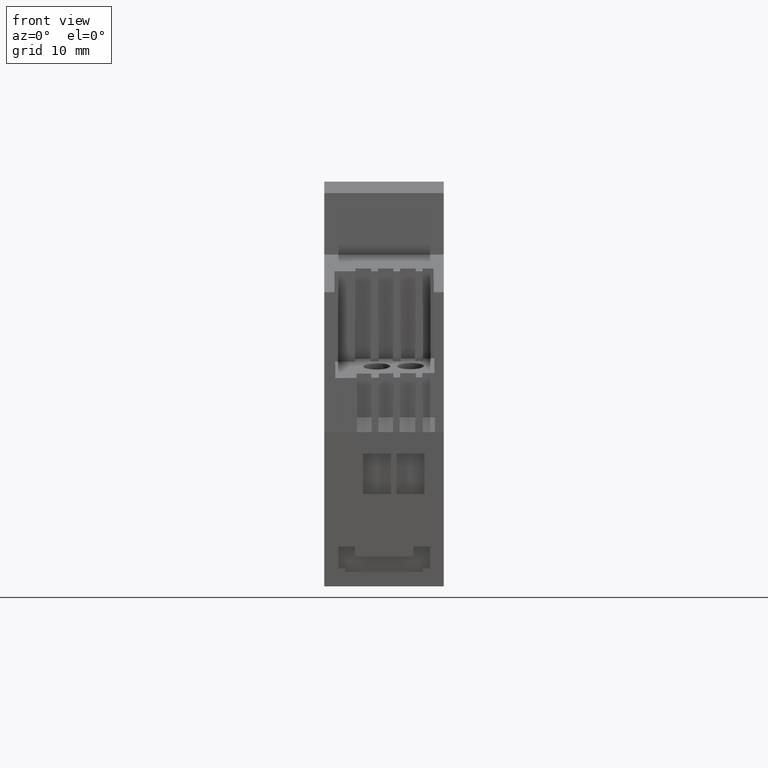
[diagram: clean part render]
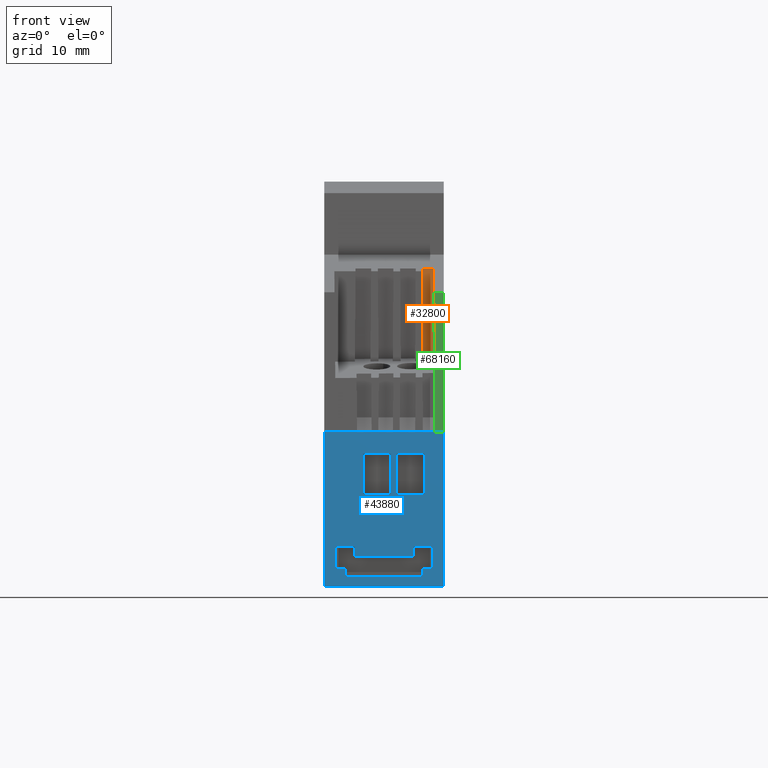
[diagram: same view with three faces highlighted in distinct colors, each labeled with its STEP entity id]
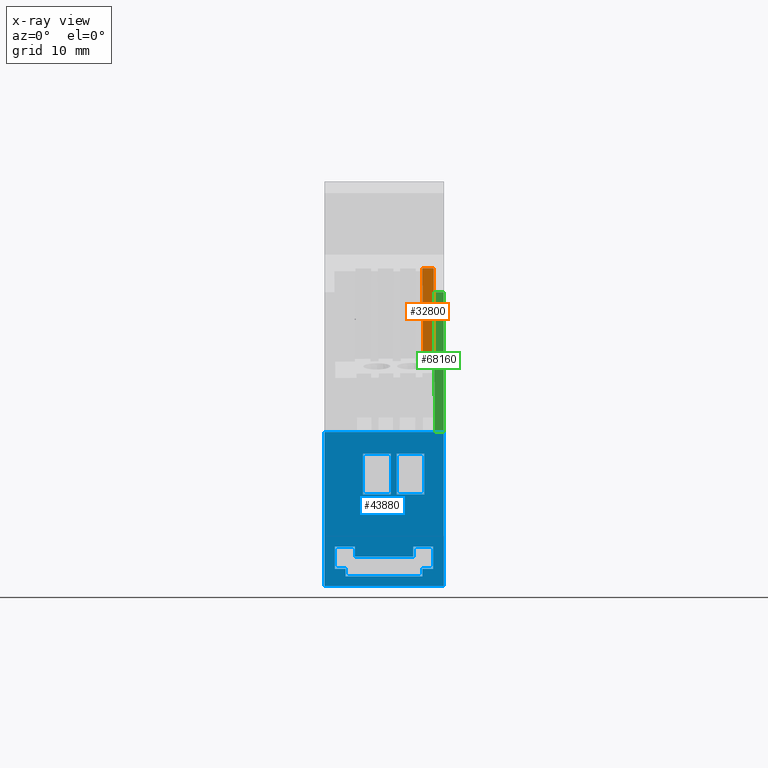
[diagram: x-ray of the same camera — body ghosted, the three highlighted faces saturated]
A machine part, front view with three faces highlighted in distinct colors.
The next image is the same camera in x-ray (body ghosted, the three faces saturated) — at least one of them is partly hidden behind the body in this view.
Their STEP definitions:

[orange] entity #32800 — the highlighted planar face has unit normal (0.0002, 0.9998, -0.0223).
#6060=CARTESIAN_POINT('',(11.1944867334395,-82.8205342161676,
6.34089229144267));
#6070=DIRECTION('',(-1.76127537504895E-14,0.00872653549841275,
-0.999961923064171));
#6080=DIRECTION('',(0.200308362867416,0.979695597030382,
0.00854967395050714));
#6090=AXIS2_PLACEMENT_3D('',#6060,#6070,#6080);
#6100=CYLINDRICAL_SURFACE('',#6090,118.996222798679);
#6380=CARTESIAN_POINT('',(0.0678739772899988,-78.049936182583,-9.));
#6390=DIRECTION('',(0.,0.,-1.));
#6400=DIRECTION('',(-0.173645167147608,0.984808283843246,0.));
#6410=AXIS2_PLACEMENT_3D('',#6380,#6390,#6400);
#6420=CYLINDRICAL_SURFACE('',#6410,129.9791574237);
#6480=CARTESIAN_POINT('',(32.153217548531,47.9068504249294,
-7.46883637802487));
#6490=VERTEX_POINT('',#6480);
#6540=CARTESIAN_POINT('',(32.2,45.7958963043397,-5.80730438806806));
#6550=DIRECTION('',(-0.999751787330191,-0.0222786790074192,
-0.000155537047573668));
#6560=DIRECTION('',(0.0222792219363421,-0.999727424084353,
-0.00697952746070477));
#6570=AXIS2_PLACEMENT_3D('',#6540,#6550,#6560);
#6580=PLANE('',#6570);
#6590=CARTESIAN_POINT('',(32.1532175485309,47.9068504249294,
-7.4688363779665));
#6600=CARTESIAN_POINT('',(32.1531956922292,47.9068559924496,
-7.32914721665293));
#6610=CARTESIAN_POINT('',(32.1531738359276,47.9068615599636,
-7.18945805534681));
#6620=CARTESIAN_POINT('',(32.1531519796262,47.9068671274716,
-7.04976889403632));
#6630=CARTESIAN_POINT('',(32.1531301233247,47.9068726949796,
-6.91007973272342));
#6640=CARTESIAN_POINT('',(32.1531082670234,47.9068782624815,
-6.77039057141621));
#6650=CARTESIAN_POINT('',(32.1530864107222,47.9068838299773,
-6.6307014101062));
#6660=CARTESIAN_POINT('',(32.153064554421,47.9068893974731,
-6.49101224879592));
#6670=CARTESIAN_POINT('',(32.1530426981199,47.9068949649628,
-6.35132308748927));
#6680=CARTESIAN_POINT('',(32.153020841819,47.9069005324465,
-6.21163392617596));
#6690=CARTESIAN_POINT('',(32.1529989855181,47.9069060999301,
-6.07194476486596));
#6700=CARTESIAN_POINT('',(32.1529771292173,47.9069116674076,
-5.93225560355899));
#6710=CARTESIAN_POINT('',(32.1529552729167,47.906917234879,
-5.79256644224595));
#6720=B_SPLINE_CURVE_WITH_KNOTS('',3,(#6590,#6600,#6610,#6620,#6630,
#6640,#6650,#6660,#6670,#6680,#6690,#6700,#6710),.UNSPECIFIED.,.F.,.F.,(
4,3,3,3,4),(0.,0.419067489392611,0.838134978785163,1.25720246817783,
1.67626995757026),.UNSPECIFIED.);
#6730=SURFACE_CURVE('',#6720,(#6420,#6580),.CURVE_3D.);
#6740=CARTESIAN_POINT('',(32.1529552729166,47.906917234879,
-5.79256644230418));
#6750=VERTEX_POINT('',#6740);
#6760=EDGE_CURVE('',#6490,#6750,#6730,.T.);
#23110=CARTESIAN_POINT('',(32.4545788551557,34.3722719148363,
-5.88705762700751));
#23120=VERTEX_POINT('',#23110);
#23150=CARTESIAN_POINT('',(32.4545788551557,34.3722719148364,
-5.88705762701448));
#23160=CARTESIAN_POINT('',(32.4545760892345,34.3728904843029,
-5.95788111335249));
#23170=CARTESIAN_POINT('',(32.4545733233134,34.3735090537693,
-6.02870459968991));
#23180=CARTESIAN_POINT('',(32.4545705573922,34.3741276232356,
-6.09952808602799));
#23190=CARTESIAN_POINT('',(32.454567791471,34.3747461927018,
-6.17035157236603));
#23200=CARTESIAN_POINT('',(32.4545650255499,34.375364762168,
-6.2411750587037));
#23210=CARTESIAN_POINT('',(32.4545622596287,34.3759833316341,
-6.3119985450416));
#23220=CARTESIAN_POINT('',(32.4545567277864,34.3772204705663,
-6.45364551771386));
#23230=CARTESIAN_POINT('',(32.4545511959441,34.3784576094981,
-6.59529249039183));
#23240=CARTESIAN_POINT('',(32.4545456641019,34.3796947484294,
-6.73693946306702));
#23250=CARTESIAN_POINT('',(32.4545401322596,34.3809318873608,
-6.87858643574175));
#23260=CARTESIAN_POINT('',(32.4545346004173,34.3821690262918,
-7.02023340841964));
#23270=CARTESIAN_POINT('',(32.454529068575,34.3834061652223,
-7.1618803810922));
#23280=CARTESIAN_POINT('',(32.4545263026539,34.3840247346876,
-7.23270386742993));
#23290=CARTESIAN_POINT('',(32.4545235367328,34.3846433041527,
-7.30352735376784));
#23300=CARTESIAN_POINT('',(32.4545207708116,34.3852618736178,
-7.37435084010593));
#23310=CARTESIAN_POINT('',(32.4545180048905,34.3858804430829,
-7.44517432644374));
#23320=CARTESIAN_POINT('',(32.4545152389694,34.3864990125479,
-7.51599781278134));
#23330=CARTESIAN_POINT('',(32.4545124730483,34.3871175820127,
-7.58682129911932));
#23340=B_SPLINE_CURVE_WITH_KNOTS('',3,(#23150,#23160,#23170,#23180,
#23190,#23200,#23210,#23220,#23230,#23240,#23250,#23260,#23270,#23280,
#23290,#23300,#23310,#23320,#23330),.UNSPECIFIED.,.F.,.F.,(4,3,3,3,3,3,4
),(0.,0.212478562862054,0.424957125724217,0.849914251446708,
1.27487137716895,1.4873499400312,1.6998285028931),.UNSPECIFIED.);
#23350=SURFACE_CURVE('',#23340,(#6580,#6100),.CURVE_3D.);
#23360=CARTESIAN_POINT('',(32.4545124730482,34.3871175820127,
-7.58682129911192));
#23370=VERTEX_POINT('',#23360);
#23380=EDGE_CURVE('',#23120,#23370,#23350,.T.);
#32530=CARTESIAN_POINT('',(32.3030178741682,41.1849967938318,
-7.52749710597256));
#32540=DIRECTION('',(0.0222791880199984,-0.999713720601328,
-0.00872436946833456));
#32550=VECTOR('',#32540,1.);
#32560=LINE('',#32530,#32550);
#32570=EDGE_CURVE('',#6490,#23370,#32560,.T.);
#32690=ORIENTED_EDGE('',*,*,#6760,.T.);
#32700=ORIENTED_EDGE('',*,*,#32570,.F.);
#32710=ORIENTED_EDGE('',*,*,#23380,.T.);
#32720=CARTESIAN_POINT('',(32.3027552621304,41.1849967938318,
-5.83949506222269));
#32730=DIRECTION('',(0.0222792219363421,-0.999727424084353,
-0.00697952746070477));
#32740=VECTOR('',#32730,1.);
#32750=LINE('',#32720,#32740);
#32760=EDGE_CURVE('',#6750,#23120,#32750,.T.);
#32770=ORIENTED_EDGE('',*,*,#32760,.T.);
#32780=EDGE_LOOP('',(#32770,#32710,#32700,#32690));
#32790=FACE_OUTER_BOUND('',#32780,.T.);
#32800=ADVANCED_FACE('',(#32790),#6580,.F.);

[blue] entity #43880 — the highlighted planar face has unit normal (0, -1, 0).
#2100=CARTESIAN_POINT('',(44.999999998993,23.2499999998841,
-5.86939194389488));
#2110=VERTEX_POINT('',#2100);
#3710=CARTESIAN_POINT('',(45.,23.2499999806805,4.06060805610558));
#3720=VERTEX_POINT('',#3710);
#27140=CARTESIAN_POINT('',(44.99999999899,23.2499999999402,
-4.70310805610561));
#27150=VERTEX_POINT('',#27140);
#36950=CARTESIAN_POINT('',(45.,23.2499999806805,-1.34310805610558));
#36960=VERTEX_POINT('',#36950);
#41750=CARTESIAN_POINT('',(45.,0.,-9.));
#41760=DIRECTION('',(1.,0.,0.));
#41770=DIRECTION('',(0.,1.,0.));
#41780=AXIS2_PLACEMENT_3D('',#41750,#41760,#41770);
#41790=PLANE('',#41780);
#41800=CARTESIAN_POINT('',(45.,13.875,-9.));
#41810=DIRECTION('',(0.,0.,-1.));
#41820=VECTOR('',#41810,1.);
#41830=LINE('',#41800,#41820);
#41840=CARTESIAN_POINT('',(45.,13.875,-1.89999999999997));
#41850=VERTEX_POINT('',#41840);
#41860=CARTESIAN_POINT('',(45.,13.875,-6.10000000000003));
#41870=VERTEX_POINT('',#41860);
#41880=EDGE_CURVE('',#41850,#41870,#41830,.T.);
#41890=ORIENTED_EDGE('',*,*,#41880,.F.);
#41900=CARTESIAN_POINT('',(45.,41.1849967938318,-6.10000000000003));
#41910=DIRECTION('',(0.,1.,0.));
#41920=VECTOR('',#41910,1.);
#41930=LINE('',#41900,#41920);
#41940=CARTESIAN_POINT('',(45.,19.975,-6.10000000000003));
#41950=VERTEX_POINT('',#41940);
#41960=EDGE_CURVE('',#41870,#41950,#41930,.T.);
#41970=ORIENTED_EDGE('',*,*,#41960,.F.);
#41980=CARTESIAN_POINT('',(45.,19.975,-9.));
#41990=DIRECTION('',(0.,0.,1.));
#42000=VECTOR('',#41990,1.);
#42010=LINE('',#41980,#42000);
#42020=CARTESIAN_POINT('',(45.,19.975,-1.89999999999997));
#42030=VERTEX_POINT('',#42020);
#42040=EDGE_CURVE('',#41950,#42030,#42010,.T.);
#42050=ORIENTED_EDGE('',*,*,#42040,.F.);
#42060=CARTESIAN_POINT('',(45.,41.1849967938318,-1.89999999999997));
#42070=DIRECTION('',(0.,-1.,0.));
#42080=VECTOR('',#42070,1.);
#42090=LINE('',#42060,#42080);
#42100=EDGE_CURVE('',#42030,#41850,#42090,.T.);
#42110=ORIENTED_EDGE('',*,*,#42100,.F.);
#42120=EDGE_LOOP('',(#42110,#42050,#41970,#41890));
#42130=FACE_BOUND('',#42120,.T.);
#42140=CARTESIAN_POINT('',(45.,2.65,-9.));
#42150=DIRECTION('',(0.,0.,-1.));
#42160=VECTOR('',#42150,1.);
#42170=LINE('',#42140,#42160);
#42180=CARTESIAN_POINT('',(45.,2.65,7.4));
#42190=VERTEX_POINT('',#42180);
#42200=CARTESIAN_POINT('',(45.,2.65,5.8));
#42210=VERTEX_POINT('',#42200);
#42220=EDGE_CURVE('',#42190,#42210,#42170,.T.);
#42230=ORIENTED_EDGE('',*,*,#42220,.F.);
#42240=CARTESIAN_POINT('',(45.,41.1849967938318,5.8));
#42250=DIRECTION('',(0.,-1.,0.));
#42260=VECTOR('',#42250,1.);
#42270=LINE('',#42240,#42260);
#42280=CARTESIAN_POINT('',(45.,1.5,5.8));
#42290=VERTEX_POINT('',#42280);
#42300=EDGE_CURVE('',#42210,#42290,#42270,.T.);
#42310=ORIENTED_EDGE('',*,*,#42300,.F.);
#42320=CARTESIAN_POINT('',(45.,1.5,-9.));
#42330=DIRECTION('',(0.,0.,-1.));
#42340=VECTOR('',#42330,1.);
#42350=LINE('',#42320,#42340);
#42360=CARTESIAN_POINT('',(45.,1.5,-5.8));
#42370=VERTEX_POINT('',#42360);
#42380=EDGE_CURVE('',#42290,#42370,#42350,.T.);
#42390=ORIENTED_EDGE('',*,*,#42380,.F.);
#42400=CARTESIAN_POINT('',(45.,41.1849967938318,-5.8));
#42410=DIRECTION('',(0.,1.,0.));
#42420=VECTOR('',#42410,1.);
#42430=LINE('',#42400,#42420);
#42440=CARTESIAN_POINT('',(45.,2.65,-5.8));
#42450=VERTEX_POINT('',#42440);
#42460=EDGE_CURVE('',#42370,#42450,#42430,.T.);
#42470=ORIENTED_EDGE('',*,*,#42460,.F.);
#42480=CARTESIAN_POINT('',(45.,2.65,-9.));
#42490=DIRECTION('',(0.,0.,-1.));
#42500=VECTOR('',#42490,1.);
#42510=LINE('',#42480,#42500);
#42520=CARTESIAN_POINT('',(45.,2.65,-7.4));
#42530=VERTEX_POINT('',#42520);
#42540=EDGE_CURVE('',#42450,#42530,#42510,.T.);
#42550=ORIENTED_EDGE('',*,*,#42540,.F.);
#42560=CARTESIAN_POINT('',(45.,41.1849967938318,-7.4));
#42570=DIRECTION('',(0.,1.,0.));
#42580=VECTOR('',#42570,1.);
#42590=LINE('',#42560,#42580);
#42600=CARTESIAN_POINT('',(45.,6.,-7.4));
#42610=VERTEX_POINT('',#42600);
#42620=EDGE_CURVE('',#42530,#42610,#42590,.T.);
#42630=ORIENTED_EDGE('',*,*,#42620,.F.);
#42640=CARTESIAN_POINT('',(45.,6.,-9.));
#42650=DIRECTION('',(0.,0.,1.));
#42660=VECTOR('',#42650,1.);
#42670=LINE('',#42640,#42660);
#42680=CARTESIAN_POINT('',(45.,6.,-4.4));
#42690=VERTEX_POINT('',#42680);
#42700=EDGE_CURVE('',#42610,#42690,#42670,.T.);
#42710=ORIENTED_EDGE('',*,*,#42700,.F.);
#42720=CARTESIAN_POINT('',(45.,41.1849967938318,-4.4));
#42730=DIRECTION('',(0.,-1.,0.));
#42740=VECTOR('',#42730,1.);
#42750=LINE('',#42720,#42740);
#42760=CARTESIAN_POINT('',(45.,4.5,-4.4));
#42770=VERTEX_POINT('',#42760);
#42780=EDGE_CURVE('',#42690,#42770,#42750,.T.);
#42790=ORIENTED_EDGE('',*,*,#42780,.F.);
#42800=CARTESIAN_POINT('',(45.,4.5,-9.));
#42810=DIRECTION('',(0.,0.,1.));
#42820=VECTOR('',#42810,1.);
#42830=LINE('',#42800,#42820);
#42840=CARTESIAN_POINT('',(45.,4.5,4.4));
#42850=VERTEX_POINT('',#42840);
#42860=EDGE_CURVE('',#42770,#42850,#42830,.T.);
#42870=ORIENTED_EDGE('',*,*,#42860,.F.);
#42880=CARTESIAN_POINT('',(45.,41.1849967938318,4.4));
#42890=DIRECTION('',(0.,1.,0.));
#42900=VECTOR('',#42890,1.);
#42910=LINE('',#42880,#42900);
#42920=CARTESIAN_POINT('',(45.,6.,4.4));
#42930=VERTEX_POINT('',#42920);
#42940=EDGE_CURVE('',#42850,#42930,#42910,.T.);
#42950=ORIENTED_EDGE('',*,*,#42940,.F.);
#42960=CARTESIAN_POINT('',(45.,6.,-9.));
#42970=DIRECTION('',(0.,0.,1.));
#42980=VECTOR('',#42970,1.);
#42990=LINE('',#42960,#42980);
#43000=CARTESIAN_POINT('',(45.,6.,7.4));
#43010=VERTEX_POINT('',#43000);
#43020=EDGE_CURVE('',#42930,#43010,#42990,.T.);
#43030=ORIENTED_EDGE('',*,*,#43020,.F.);
#43040=CARTESIAN_POINT('',(45.,41.1849967938318,7.4));
#43050=DIRECTION('',(0.,-1.,0.));
#43060=VECTOR('',#43050,1.);
#43070=LINE('',#43040,#43060);
#43080=EDGE_CURVE('',#43010,#42190,#43070,.T.);
#43090=ORIENTED_EDGE('',*,*,#43080,.F.);
#43100=EDGE_LOOP('',(#43090,#43030,#42950,#42870,#42790,#42710,#42630,
#42550,#42470,#42390,#42310,#42230));
#43110=FACE_BOUND('',#43100,.T.);
#43120=CARTESIAN_POINT('',(45.,41.1849967938318,-1.02000000000003));
#43130=DIRECTION('',(0.,1.,0.));
#43140=VECTOR('',#43130,1.);
#43150=LINE('',#43120,#43140);
#43160=CARTESIAN_POINT('',(45.,13.875,-1.02000000000003));
#43170=VERTEX_POINT('',#43160);
#43180=CARTESIAN_POINT('',(45.,19.975,-1.02000000000003));
#43190=VERTEX_POINT('',#43180);
#43200=EDGE_CURVE('',#43170,#43190,#43150,.T.);
#43210=ORIENTED_EDGE('',*,*,#43200,.F.);
#43220=CARTESIAN_POINT('',(45.,19.975,-9.));
#43230=DIRECTION('',(0.,0.,1.));
#43240=VECTOR('',#43230,1.);
#43250=LINE('',#43220,#43240);
#43260=CARTESIAN_POINT('',(45.,19.975,3.18000000000003));
#43270=VERTEX_POINT('',#43260);
#43280=EDGE_CURVE('',#43190,#43270,#43250,.T.);
#43290=ORIENTED_EDGE('',*,*,#43280,.F.);
#43300=CARTESIAN_POINT('',(45.,41.1849967938318,3.18000000000003));
#43310=DIRECTION('',(0.,-1.,0.));
#43320=VECTOR('',#43310,1.);
#43330=LINE('',#43300,#43320);
#43340=CARTESIAN_POINT('',(45.,13.875,3.18000000000003));
#43350=VERTEX_POINT('',#43340);
#43360=EDGE_CURVE('',#43270,#43350,#43330,.T.);
#43370=ORIENTED_EDGE('',*,*,#43360,.F.);
#43380=CARTESIAN_POINT('',(45.,13.875,-9.));
#43390=DIRECTION('',(0.,0.,-1.));
#43400=VECTOR('',#43390,1.);
#43410=LINE('',#43380,#43400);
#43420=EDGE_CURVE('',#43350,#43170,#43410,.T.);
#43430=ORIENTED_EDGE('',*,*,#43420,.F.);
#43440=EDGE_LOOP('',(#43430,#43370,#43290,#43210));
#43450=FACE_BOUND('',#43440,.T.);
#43460=CARTESIAN_POINT('',(45.,23.2499999806805,-9.));
#43470=DIRECTION('',(0.,0.,-1.));
#43480=VECTOR('',#43470,1.);
#43490=LINE('',#43460,#43480);
#43500=CARTESIAN_POINT('',(45.,23.2499999806805,-9.));
#43510=VERTEX_POINT('',#43500);
#43520=EDGE_CURVE('',#2110,#43510,#43490,.T.);
#43530=ORIENTED_EDGE('',*,*,#43520,.F.);
#43540=CARTESIAN_POINT('',(45.,0.,-9.));
#43550=DIRECTION('',(0.,-1.,0.));
#43560=VECTOR('',#43550,1.);
#43570=LINE('',#43540,#43560);
#43580=CARTESIAN_POINT('',(45.,0.,-9.));
#43590=VERTEX_POINT('',#43580);
#43600=EDGE_CURVE('',#43510,#43590,#43570,.T.);
#43610=ORIENTED_EDGE('',*,*,#43600,.F.);
#43620=CARTESIAN_POINT('',(45.,0.,0.));
#43630=DIRECTION('',(0.,0.,-1.));
#43640=VECTOR('',#43630,1.);
#43650=LINE('',#43620,#43640);
#43660=CARTESIAN_POINT('',(45.,0.,9.));
#43670=VERTEX_POINT('',#43660);
#43680=EDGE_CURVE('',#43670,#43590,#43650,.T.);
#43690=ORIENTED_EDGE('',*,*,#43680,.T.);
#43700=CARTESIAN_POINT('',(45.,0.,9.));
#43710=DIRECTION('',(0.,1.,0.));
#43720=VECTOR('',#43710,1.);
#43730=LINE('',#43700,#43720);
#43740=CARTESIAN_POINT('',(45.,23.2499999806805,9.));
#43750=VERTEX_POINT('',#43740);
#43760=EDGE_CURVE('',#43670,#43750,#43730,.T.);
#43770=ORIENTED_EDGE('',*,*,#43760,.F.);
#43780=EDGE_CURVE('',#43750,#3720,#43490,.T.);
#43790=ORIENTED_EDGE('',*,*,#43780,.F.);
#43800=EDGE_CURVE('',#3720,#36960,#43490,.T.);
#43810=ORIENTED_EDGE('',*,*,#43800,.F.);
#43820=EDGE_CURVE('',#36960,#27150,#43490,.T.);
#43830=ORIENTED_EDGE('',*,*,#43820,.F.);
#43840=EDGE_CURVE('',#27150,#2110,#43490,.T.);
#43850=ORIENTED_EDGE('',*,*,#43840,.F.);
#43860=EDGE_LOOP('',(#43850,#43830,#43810,#43790,#43770,#43690,#43610,
#43530));
#43870=FACE_OUTER_BOUND('',#43860,.T.);
#43880=ADVANCED_FACE('',(#42130,#43110,#43450,#43870),#41790,.T.);

[green] entity #68160 — the highlighted planar face has unit normal (-0, 0.9986, -0.0524).
#2100=CARTESIAN_POINT('',(44.999999998993,23.2499999998841,
-5.86939194389488));
#2110=VERTEX_POINT('',#2100);
#2260=CARTESIAN_POINT('',(44.9991696175277,23.2658347971301,
-7.68387526363988));
#2270=VERTEX_POINT('',#2260);
#2300=CARTESIAN_POINT('',(44.9985673052487,23.2773204735507,-9.));
#2310=DIRECTION('',(-0.000457623251742878,0.00872655726239313,
-0.999961818160726));
#2320=VECTOR('',#2310,1.);
#2330=LINE('',#2300,#2320);
#2340=EDGE_CURVE('',#2110,#2270,#2330,.T.);
#6500=CARTESIAN_POINT('',(43.8952236161742,44.3173175587917,
-7.50016175677859));
#6510=VERTEX_POINT('',#6500);
#8600=CARTESIAN_POINT('',(43.8952236161742,44.3173175587917,-9.));
#8610=DIRECTION('',(0.,0.,-1.));
#8620=VECTOR('',#8610,1.);
#8630=LINE('',#8600,#8620);
#8810=CARTESIAN_POINT('',(43.8952236161742,44.3173175587917,-9.));
#8820=VERTEX_POINT('',#8810);
#8850=EDGE_CURVE('',#6510,#8820,#8630,.T.);
#19710=CARTESIAN_POINT('',(43.8574091942536,45.0384122955165,10.8000024)
);
#19720=DIRECTION('',(-0.998627837065268,-0.0523683400380783,0.));
#19730=DIRECTION('',(0.0523683400380783,-0.998627837065268,-0.));
#19740=AXIS2_PLACEMENT_3D('',#19710,#19720,#19730);
#19750=PLANE('',#19740);
#32380=CARTESIAN_POINT('',(44.0594834463526,41.1849967938318,
-7.52749710597276));
#32390=DIRECTION('',(-0.0523663514803463,0.998589916651801,
0.0087145621798448));
#32400=VECTOR('',#32390,1.);
#32410=LINE('',#32380,#32400);
#32420=EDGE_CURVE('',#2270,#6510,#32410,.T.);
#43460=CARTESIAN_POINT('',(45.,23.2499999806805,-9.));
#43470=DIRECTION('',(0.,0.,-1.));
#43480=VECTOR('',#43470,1.);
#43490=LINE('',#43460,#43480);
#43500=CARTESIAN_POINT('',(45.,23.2499999806805,-9.));
#43510=VERTEX_POINT('',#43500);
#43520=EDGE_CURVE('',#2110,#43510,#43490,.T.);
#47380=CARTESIAN_POINT('',(44.0594834463526,41.1849967938318,-9.));
#47390=DIRECTION('',(0.0523683400380783,-0.998627837065268,-0.));
#47400=VECTOR('',#47390,1.);
#47410=LINE('',#47380,#47400);
#47420=EDGE_CURVE('',#8820,#43510,#47410,.T.);
#68090=ORIENTED_EDGE('',*,*,#47420,.F.);
#68100=ORIENTED_EDGE('',*,*,#43520,.T.);
#68110=ORIENTED_EDGE('',*,*,#2340,.F.);
#68120=ORIENTED_EDGE('',*,*,#32420,.F.);
#68130=ORIENTED_EDGE('',*,*,#8850,.F.);
#68140=EDGE_LOOP('',(#68130,#68120,#68110,#68100,#68090));
#68150=FACE_OUTER_BOUND('',#68140,.T.);
#68160=ADVANCED_FACE('',(#68150),#19750,.F.);